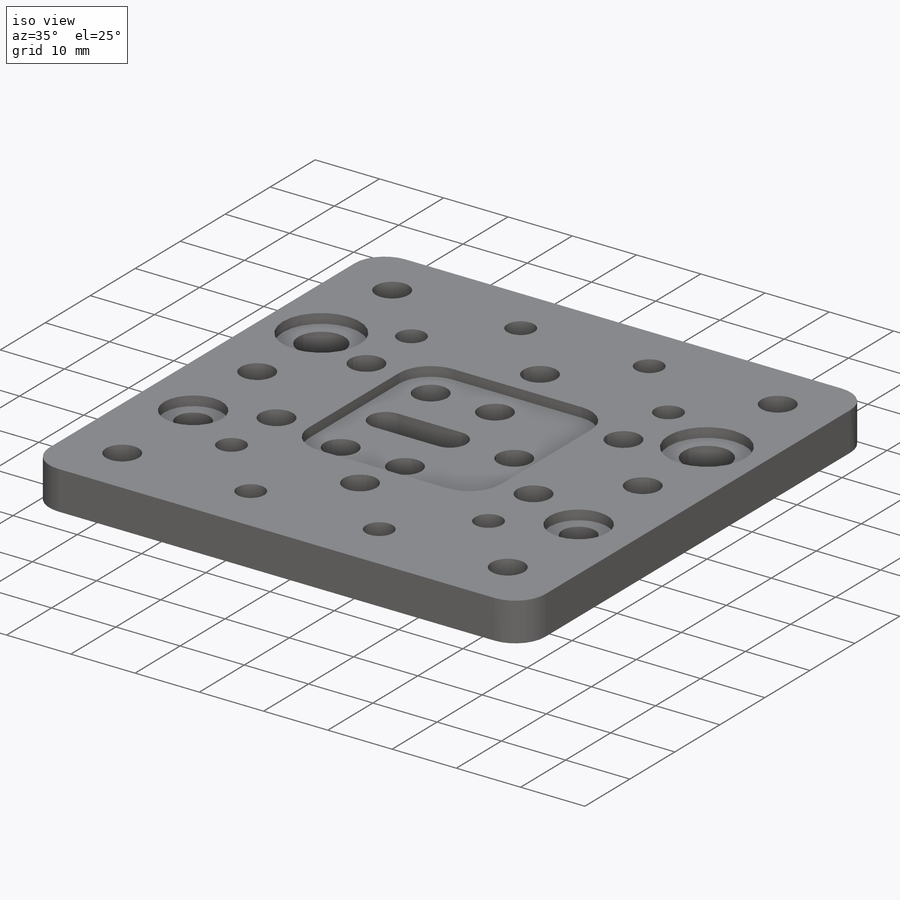
[diagram: iso view]
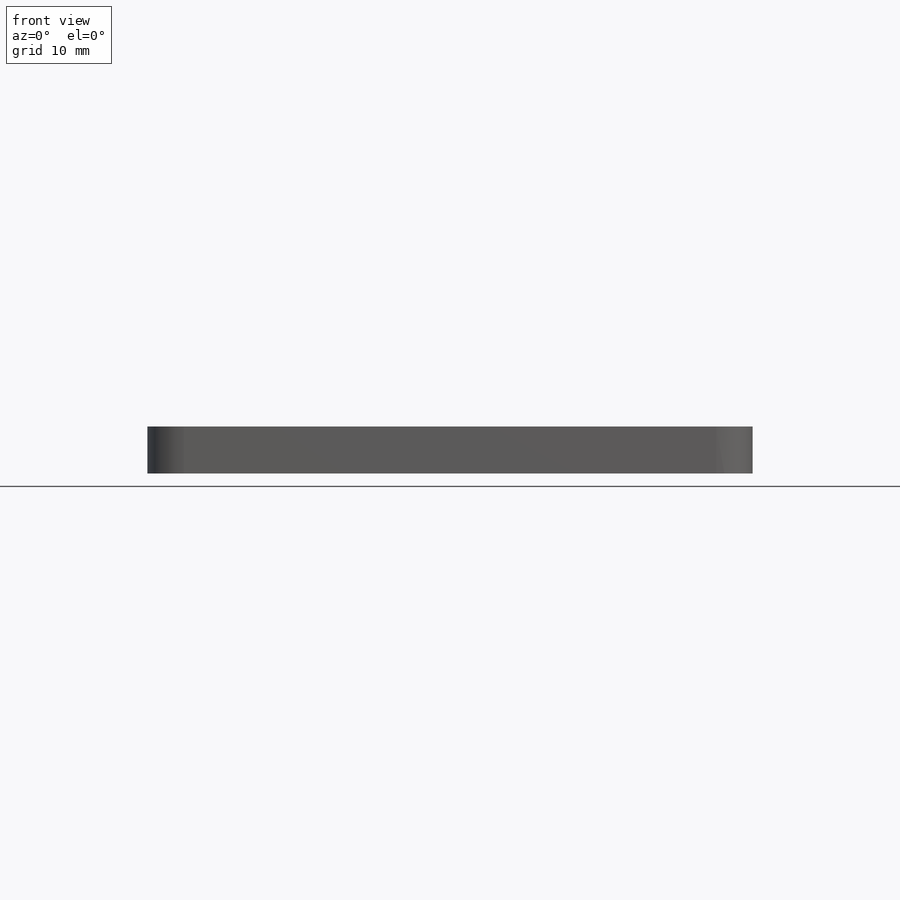
[diagram: front view]
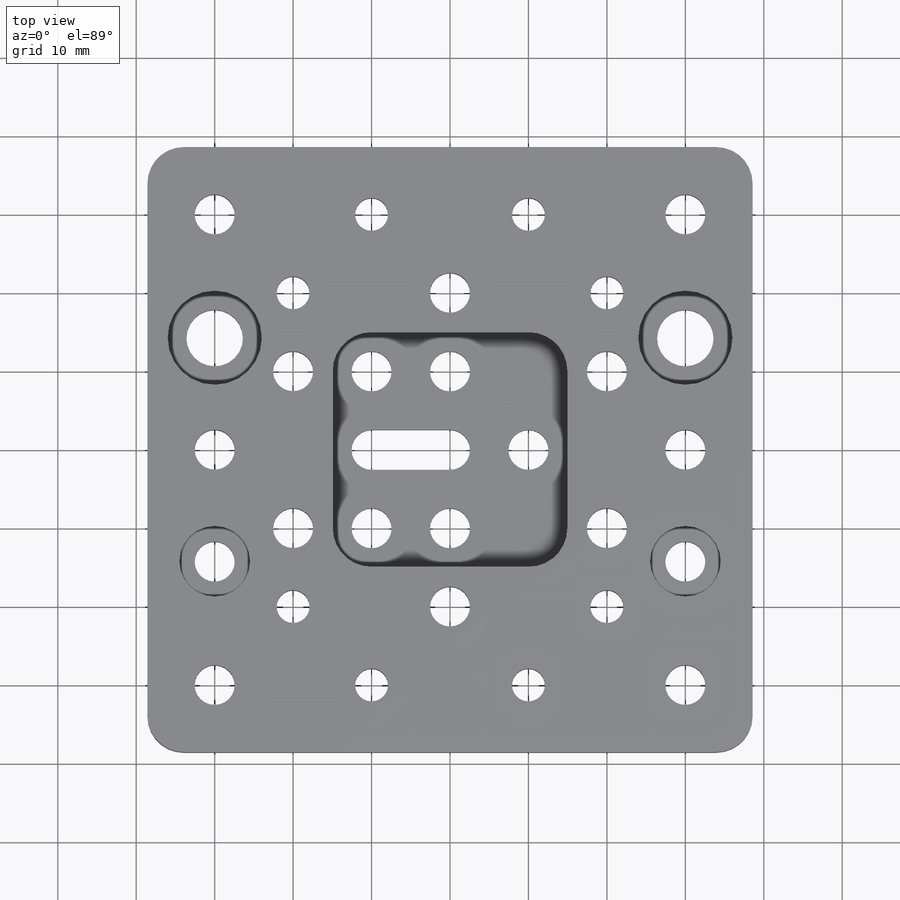
[diagram: top view]
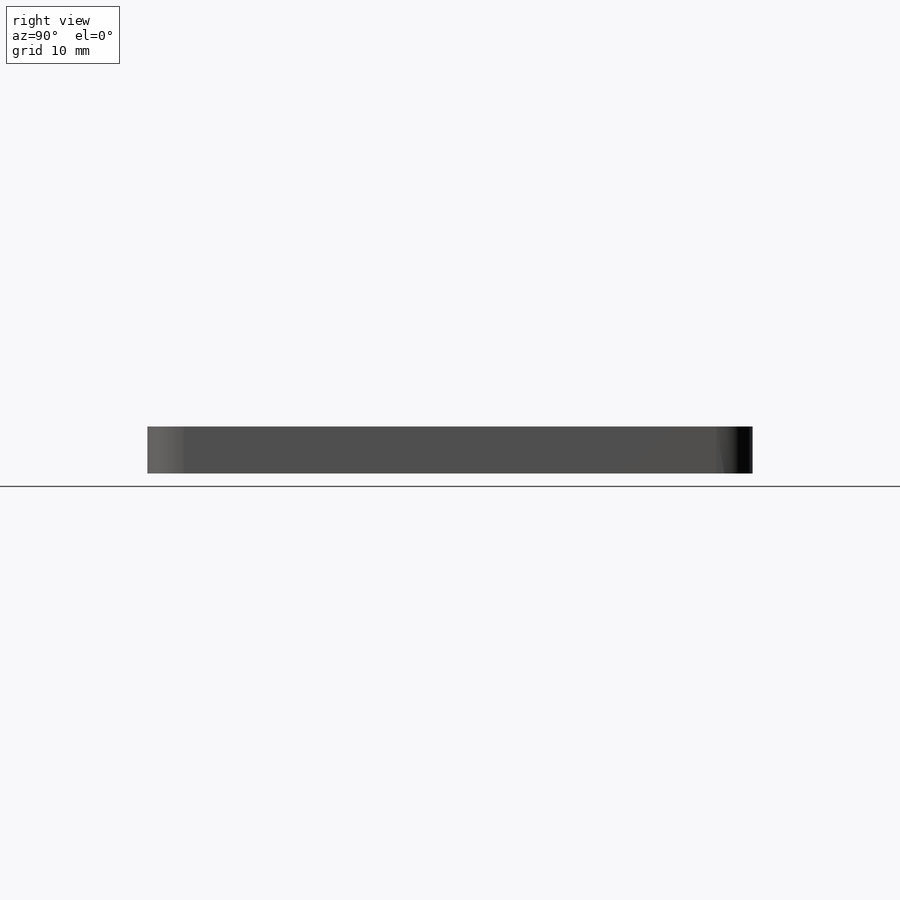
[diagram: right view]
SOLIDWORKS PART (.sldprt)
format: sldprt  version: not decoded by parser v0  size: 327,680 bytes
history: native  units: mm
features: sketch x4, material x1, extrude x1, hole x1, cut_extrude x1 (+13 scaffold rows collapsed)
feature tree (21):
  scaffold x13  (default folders/planes/origin — collapsed)
  material  "6061-T6 (SS)"
  sketch  "Sketch1"  dims[c1.D2=4.635mm c1.D3=5.1mm c1.D4=7.2mm c1.D12=5.1mm c1.D1=77.15mm c1.D5=20.0mm c1.D6=60.0mm c1.D7=40.0mm c1.D8=40.0mm c1.D9=20.0mm c1.D10=28.5mm c1.D11=60.0mm c2.D12=10.0mm c2.D13=10.0mm c2.D14=10.0mm c2.D15=5.1mm c2.D5=40.0mm c2.D7=40.0mm]
  extrude  "Boss-Extrude1"  Depth=6mm
  hole  "M5x0.8 Tapped Hole1"  Diameter=4.2mm Depth=6mm
  sketch  "Sketch4"  dims[D1=20.0mm D2=40.0mm D3=40.0mm D4=60.0mm]
  sketch  "Sketch3"  dims[hole-wizard template sketch: 60 standard entries collapsed; hole parameters kept: c18.Thru Tap Drill Depth=6.0mm]
  sketch  "Sketch2"  dims[D1=12.0mm D2=9.0mm D4=4.92mm D3=29.9mm]
  cut_extrude  "Cut-Extrude1"  Depth=1.5mm
decode coverage: 7 of 7 modeling features carry decoded parameters
note: ~ marks probable driven/reference dimensions
note: suppression state not decoded; provenance and decode notes live in map.json
